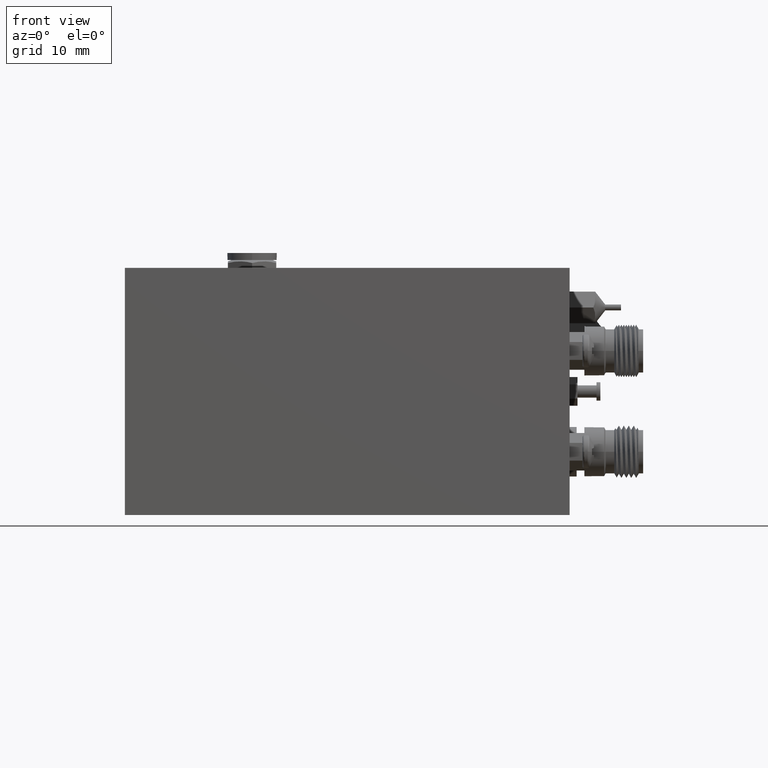
[diagram: clean part render]
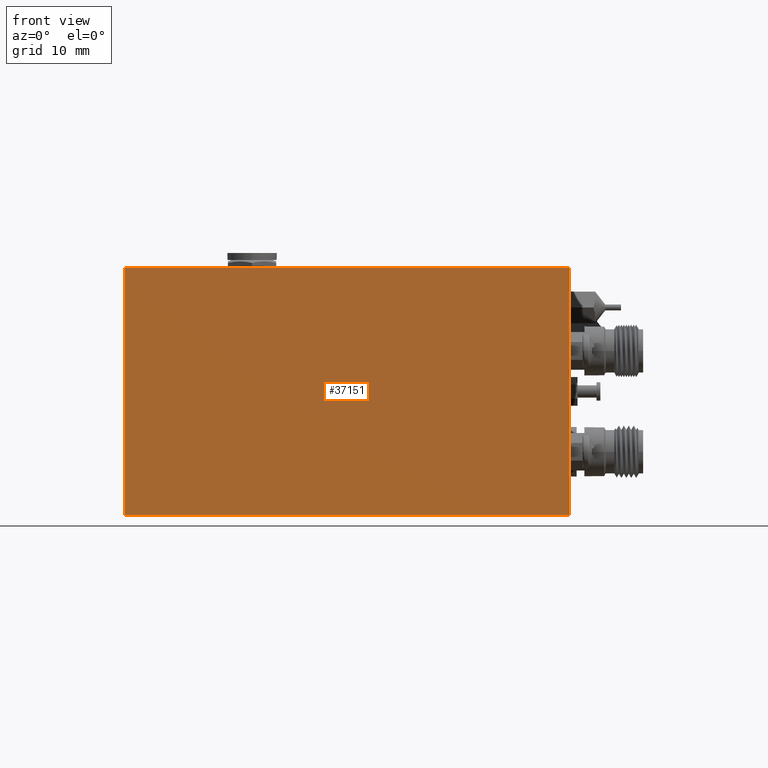
[diagram: same view with one face highlighted and labeled with its STEP entity id]
A machine part, front view. The second image highlights one B-rep face of the part: STEP entity #37151.
In plain terms, the highlighted planar face has unit normal (0, 1, -0).
Its self-contained STEP definition (entity closure, byte-faithful):
#716 = VECTOR ( 'NONE', #11433, 39.37007874015748100 ) ;
#1968 = ORIENTED_EDGE ( 'NONE', *, *, #23438, .F. ) ;
#2647 = LINE ( 'NONE', #29131, #23632 ) ;
#4717 = LINE ( 'NONE', #32218, #14288 ) ;
#5716 = CARTESIAN_POINT ( 'NONE',  ( -1.125000000000000000, -1.125000000000000200, 0.0000000000000000000 ) ) ;
#7274 = VERTEX_POINT ( 'NONE', #36514 ) ;
#8097 = VERTEX_POINT ( 'NONE', #20863 ) ;
#8382 = CARTESIAN_POINT ( 'NONE',  ( -1.125000000000000000, -1.125000000000000200, 1.250000000000000000 ) ) ;
#8512 = VERTEX_POINT ( 'NONE', #34804 ) ;
#9063 = AXIS2_PLACEMENT_3D ( 'NONE', #32224, #26524, #20329 ) ;
#11433 = DIRECTION ( 'NONE',  ( -0.0000000000000000000, -0.0000000000000000000, -1.000000000000000000 ) ) ;
#12851 = LINE ( 'NONE', #13392, #22383 ) ;
#13392 = CARTESIAN_POINT ( 'NONE',  ( 1.125000000000000000, -1.125000000000000200, 0.0000000000000000000 ) ) ;
#14213 = DIRECTION ( 'NONE',  ( -0.0000000000000000000, -0.0000000000000000000, -1.000000000000000000 ) ) ;
#14288 = VECTOR ( 'NONE', #14213, 39.37007874015748100 ) ;
#16952 = LINE ( 'NONE', #8382, #716 ) ;
#17288 = PLANE ( 'NONE',  #9063 ) ;
#19654 = DIRECTION ( 'NONE',  ( 1.000000000000000000, -0.0000000000000000000, -0.0000000000000000000 ) ) ;
#20329 = DIRECTION ( 'NONE',  ( 0.0000000000000000000, 0.0000000000000000000, 1.000000000000000000 ) ) ;
#20863 = CARTESIAN_POINT ( 'NONE',  ( 1.125000000000000000, -1.125000000000000200, 0.0000000000000000000 ) ) ;
#21533 = ORIENTED_EDGE ( 'NONE', *, *, #23314, .T. ) ;
#22383 = VECTOR ( 'NONE', #19654, 39.37007874015748100 ) ;
#22451 = EDGE_LOOP ( 'NONE', ( #21533, #1968, #26767, #34253 ) ) ;
#23314 = EDGE_CURVE ( 'NONE', #24634, #8097, #12851, .T. ) ;
#23438 = EDGE_CURVE ( 'NONE', #8512, #8097, #4717, .T. ) ;
#23632 = VECTOR ( 'NONE', #35079, 39.37007874015748100 ) ;
#24634 = VERTEX_POINT ( 'NONE', #5716 ) ;
#25105 = EDGE_CURVE ( 'NONE', #7274, #8512, #2647, .T. ) ;
#26524 = DIRECTION ( 'NONE',  ( 0.0000000000000000000, 1.000000000000000000, -0.0000000000000000000 ) ) ;
#26767 = ORIENTED_EDGE ( 'NONE', *, *, #25105, .F. ) ;
#29131 = CARTESIAN_POINT ( 'NONE',  ( 1.125000000000000000, -1.125000000000000200, 1.250000000000000000 ) ) ;
#31783 = EDGE_CURVE ( 'NONE', #7274, #24634, #16952, .T. ) ;
#32218 = CARTESIAN_POINT ( 'NONE',  ( 1.125000000000000000, -1.125000000000000200, 1.250000000000000000 ) ) ;
#32224 = CARTESIAN_POINT ( 'NONE',  ( 1.125000000000000000, -1.125000000000000200, 1.250000000000000000 ) ) ;
#34253 = ORIENTED_EDGE ( 'NONE', *, *, #31783, .T. ) ;
#34804 = CARTESIAN_POINT ( 'NONE',  ( 1.125000000000000000, -1.125000000000000200, 1.250000000000000000 ) ) ;
#35079 = DIRECTION ( 'NONE',  ( 1.000000000000000000, -0.0000000000000000000, -0.0000000000000000000 ) ) ;
#36514 = CARTESIAN_POINT ( 'NONE',  ( -1.125000000000000000, -1.125000000000000200, 1.250000000000000000 ) ) ;
#37151 = ADVANCED_FACE ( 'NONE', ( #38265 ), #17288, .F. ) ;
#38265 = FACE_OUTER_BOUND ( 'NONE', #22451, .T. ) ;